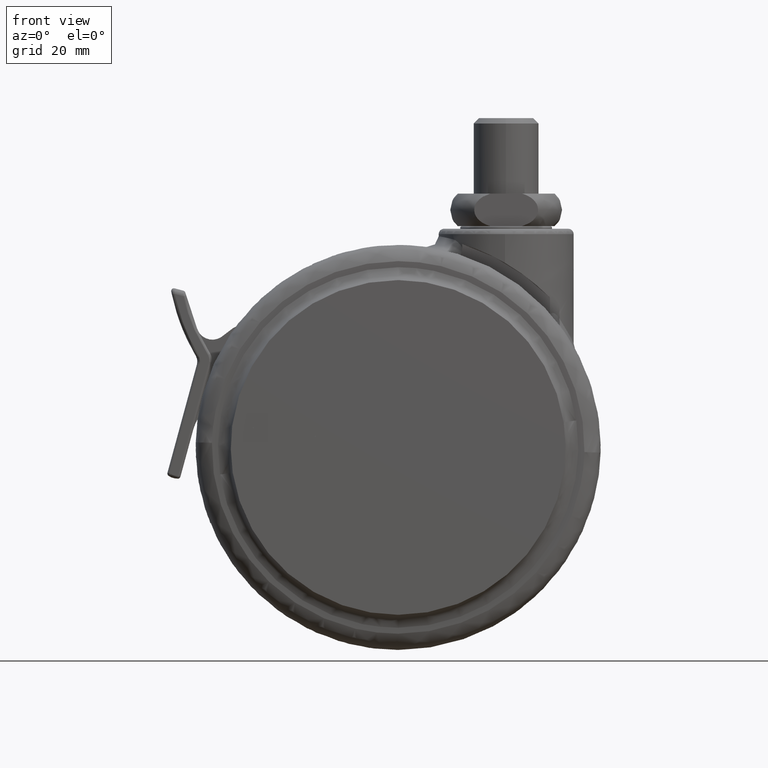
[diagram: clean part render]
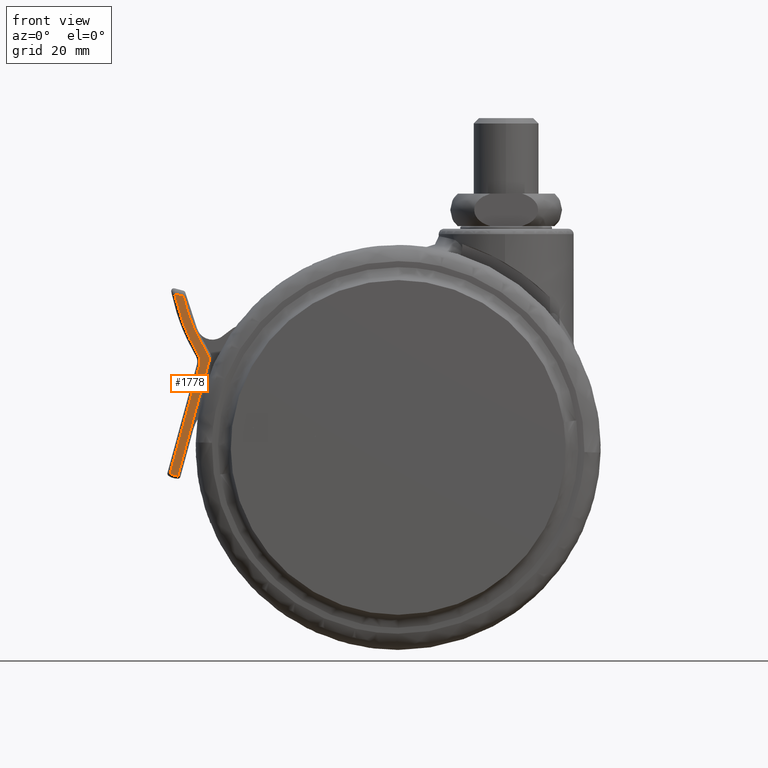
[diagram: same view with one face highlighted and labeled with its STEP entity id]
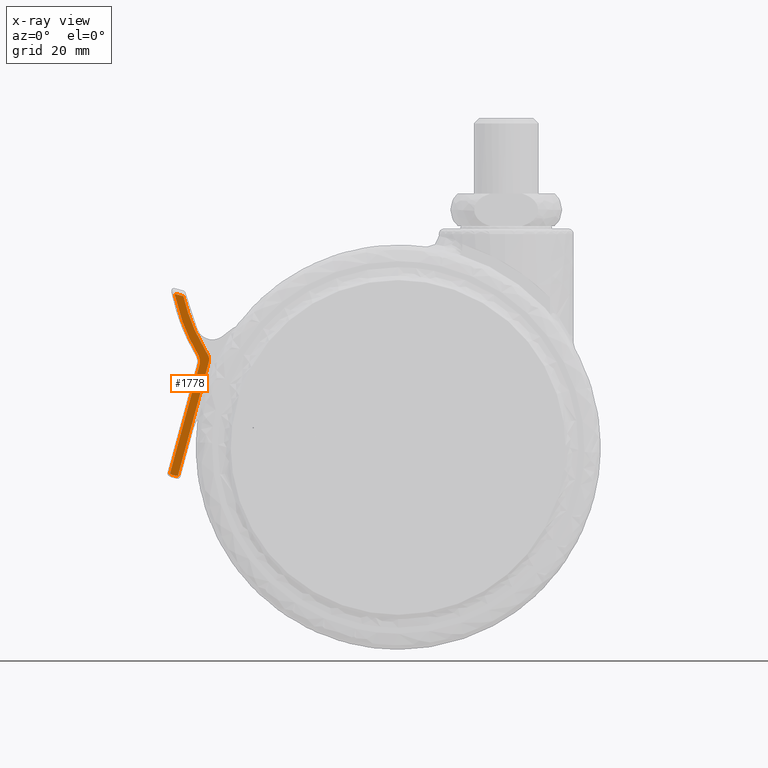
[diagram: x-ray of the same camera — body ghosted, the highlighted face saturated]
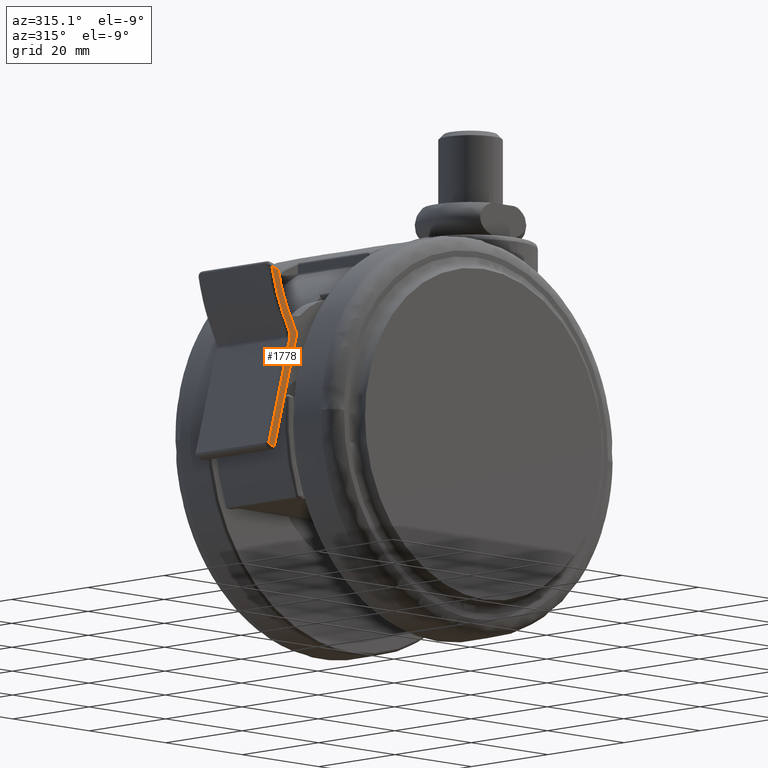
[diagram: same view with one face highlighted and labeled with its STEP entity id]
A machine part, front view. The second image highlights one B-rep face of the part: STEP entity #1778.
The next image is the same camera in x-ray: the body ghosted, the highlighted face saturated — about 0% of this face is hidden behind the body in this view.
A second angle (auxiliary view) of the same face is appended — the face is thin or edge-on in the first view.
In plain terms, the highlighted face is a freeform B-spline surface patch.
Its self-contained STEP definition (entity closure, byte-faithful):
#286=CARTESIAN_POINT('',(-62.249221638434200,-9.500000000000000,-45.343631538079897));
#287=VERTEX_POINT('',#286);
#315=CARTESIAN_POINT('',(-60.813245742523698,-9.500000000000000,-45.779408832745787));
#316=VERTEX_POINT('',#315);
#330=CARTESIAN_POINT('',(-62.249221638434207,-9.500000000000000,-45.343631538079933));
#331=CARTESIAN_POINT('',(-61.599788767367208,-9.500000000000000,-45.787423276645058));
#332=CARTESIAN_POINT('',(-60.813245742523698,-9.500000000000000,-45.779408832745759));
#340=(BOUNDED_CURVE()B_SPLINE_CURVE(2,(#330,#331,#332),.UNSPECIFIED.,.F.,.U.)CURVE()GEOMETRIC_REPRESENTATION_ITEM()QUASI_UNIFORM_CURVE()RATIONAL_B_SPLINE_CURVE((1.0,0.953898765610224,1.0))REPRESENTATION_ITEM(''));
#341=EDGE_CURVE('',#287,#316,#340,.T.);
#553=CARTESIAN_POINT('',(-59.784241541020997,-9.500000000000000,-12.503799321910140));
#554=VERTEX_POINT('',#553);
#568=CARTESIAN_POINT('',(-55.233280073166398,-9.500000000000000,-23.407080692603351));
#569=VERTEX_POINT('',#568);
#570=CARTESIAN_POINT('',(-55.233280073166362,-9.500000000000000,-23.407080692603330));
#571=CARTESIAN_POINT('',(-58.415648810021146,-9.500000000000000,-18.333969389069829));
#572=CARTESIAN_POINT('',(-59.784241541020982,-9.500000000000000,-12.503799321910151));
#580=(BOUNDED_CURVE()B_SPLINE_CURVE(2,(#570,#571,#572),.UNSPECIFIED.,.F.,.U.)CURVE()GEOMETRIC_REPRESENTATION_ITEM()QUASI_UNIFORM_CURVE()RATIONAL_B_SPLINE_CURVE((1.0,0.986444310400309,1.0))REPRESENTATION_ITEM(''));
#581=EDGE_CURVE('',#569,#554,#580,.T.);
#628=CARTESIAN_POINT('',(-56.785639218078401,-9.500000000000000,-25.240602067901001));
#629=VERTEX_POINT('',#628);
#645=CARTESIAN_POINT('',(-56.785639218078401,-9.500000000000000,-25.240602067901001));
#646=CARTESIAN_POINT('',(-62.249221638434200,-9.500000000000000,-45.343631538079897));
#647=QUASI_UNIFORM_CURVE('',1,(#645,#646),.UNSPECIFIED.,.F.,.U.);
#648=EDGE_CURVE('',#629,#287,#647,.T.);
#1011=CARTESIAN_POINT('',(-57.044303200085700,-9.500000000000000,-23.315671872337798));
#1012=VERTEX_POINT('',#1011);
#1028=CARTESIAN_POINT('',(-57.044303200085679,-9.500000000000000,-23.315671872337791));
#1029=CARTESIAN_POINT('',(-56.509243990696390,-9.500000000000000,-24.223617061730891));
#1030=CARTESIAN_POINT('',(-56.785639218078373,-9.500000000000000,-25.240602067901008));
#1038=(BOUNDED_CURVE()B_SPLINE_CURVE(2,(#1028,#1029,#1030),.UNSPECIFIED.,.F.,.U.)CURVE()GEOMETRIC_REPRESENTATION_ITEM()QUASI_UNIFORM_CURVE()RATIONAL_B_SPLINE_CURVE((1.0,0.921471360089310,1.0))REPRESENTATION_ITEM(''));
#1039=EDGE_CURVE('',#1012,#629,#1038,.T.);
#1321=CARTESIAN_POINT('',(-61.419077750071203,-9.500000000000000,-12.065746279937921));
#1322=VERTEX_POINT('',#1321);
#1338=CARTESIAN_POINT('',(-61.419077750071231,-9.500000000000000,-12.065746279937930));
#1339=CARTESIAN_POINT('',(-60.148937036164391,-9.500000000000000,-18.047400049650733));
#1340=CARTESIAN_POINT('',(-57.044303200085700,-9.500000000000000,-23.315671872337770));
#1348=(BOUNDED_CURVE()B_SPLINE_CURVE(2,(#1338,#1339,#1340),.UNSPECIFIED.,.F.,.U.)CURVE()GEOMETRIC_REPRESENTATION_ITEM()QUASI_UNIFORM_CURVE()RATIONAL_B_SPLINE_CURVE((1.0,0.986963966182467,1.0))REPRESENTATION_ITEM(''));
#1349=EDGE_CURVE('',#1322,#1012,#1348,.T.);
#1709=CARTESIAN_POINT('',(-59.784241541020997,-9.500000000000000,-12.503799321910140));
#1710=CARTESIAN_POINT('',(-61.419077750071203,-9.500000000000000,-12.065746279937921));
#1711=QUASI_UNIFORM_CURVE('',1,(#1709,#1710),.UNSPECIFIED.,.F.,.U.);
#1712=EDGE_CURVE('',#554,#1322,#1711,.T.);
#1745=CARTESIAN_POINT('',(-62.611118737373737,-9.500000000000000,-10.381748900768789));
#1746=CARTESIAN_POINT('',(-54.642136898084821,-9.500000000000000,-10.381748900768789));
#1747=CARTESIAN_POINT('',(-62.611118737373737,-9.500000000000000,-47.463407116185820));
#1748=CARTESIAN_POINT('',(-54.642136898084821,-9.500000000000000,-47.463407116185820));
#1749=B_SPLINE_SURFACE_WITH_KNOTS('',1,1,((#1745,#1747),(#1746,#1748)),.UNSPECIFIED.,.F.,.F.,.U.,(2,2),(2,2),(0.0,7.968981839288914),(0.0,37.081658215417029),.UNSPECIFIED.);
#1750=ORIENTED_EDGE('',*,*,#1712,.T.);
#1751=ORIENTED_EDGE('',*,*,#1349,.T.);
#1752=ORIENTED_EDGE('',*,*,#1039,.T.);
#1753=ORIENTED_EDGE('',*,*,#648,.T.);
#1754=ORIENTED_EDGE('',*,*,#341,.T.);
#1755=CARTESIAN_POINT('',(-55.056468019977302,-9.500000000000000,-24.597579163910449));
#1756=VERTEX_POINT('',#1755);
#1757=CARTESIAN_POINT('',(-60.813245742523698,-9.500000000000000,-45.779408832745787));
#1758=CARTESIAN_POINT('',(-55.056468019977302,-9.500000000000000,-24.597579163910449));
#1759=QUASI_UNIFORM_CURVE('',1,(#1757,#1758),.UNSPECIFIED.,.F.,.U.);
#1760=EDGE_CURVE('',#316,#1756,#1759,.T.);
#1761=ORIENTED_EDGE('',*,*,#1760,.T.);
#1762=CARTESIAN_POINT('',(-55.056468019977338,-9.500000000000000,-24.597579163910439));
#1763=CARTESIAN_POINT('',(-54.884168508116780,-9.500000000000000,-23.963610112446133));
#1764=CARTESIAN_POINT('',(-55.233280073166412,-9.500000000000000,-23.407080692603358));
#1772=(BOUNDED_CURVE()B_SPLINE_CURVE(2,(#1762,#1763,#1764),.UNSPECIFIED.,.F.,.U.)CURVE()GEOMETRIC_REPRESENTATION_ITEM()QUASI_UNIFORM_CURVE()RATIONAL_B_SPLINE_CURVE((1.0,0.915996778722051,1.0))REPRESENTATION_ITEM(''));
#1773=EDGE_CURVE('',#1756,#569,#1772,.T.);
#1774=ORIENTED_EDGE('',*,*,#1773,.T.);
#1775=ORIENTED_EDGE('',*,*,#581,.T.);
#1776=EDGE_LOOP('',(#1750,#1751,#1752,#1753,#1754,#1761,#1774,#1775));
#1777=FACE_OUTER_BOUND('',#1776,.T.);
#1778=ADVANCED_FACE('',(#1777),#1749,.F.);